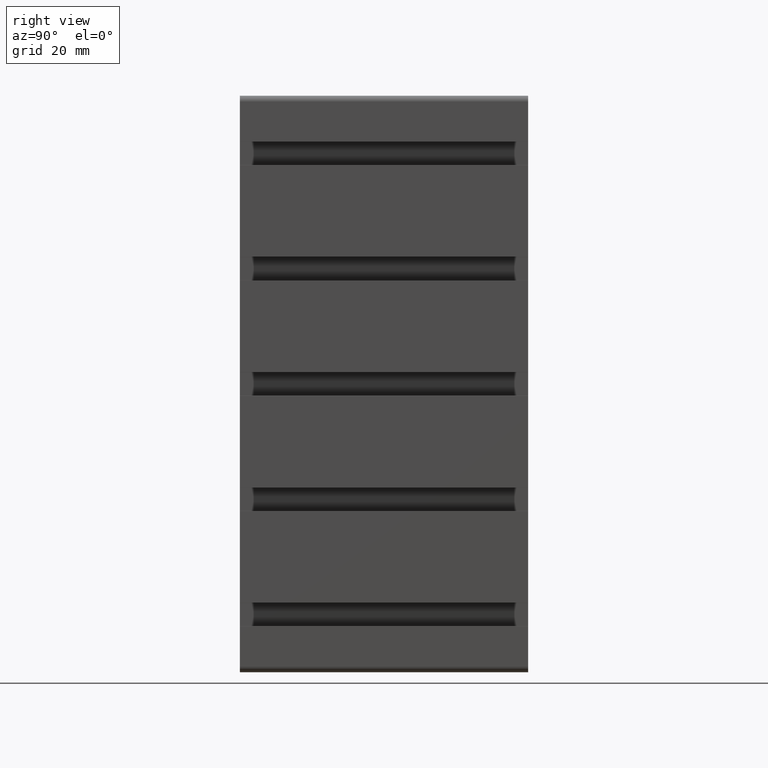
[diagram: clean part render]
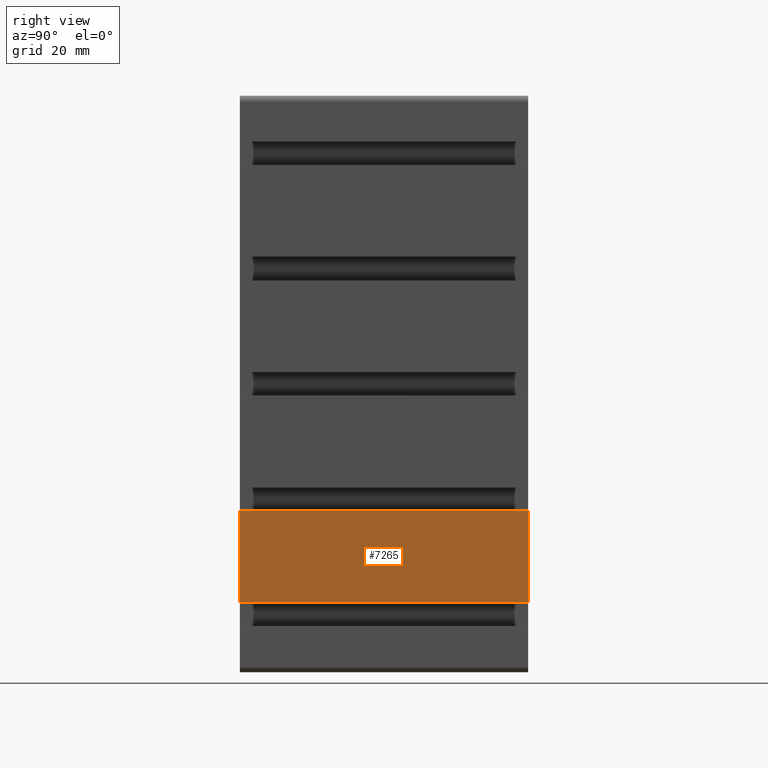
[diagram: same view with one face highlighted and labeled with its STEP entity id]
A machine part, right view. The second image highlights one B-rep face of the part: STEP entity #7265.
In plain terms, the highlighted planar face has unit normal (1, 0, -0).
Its self-contained STEP definition (entity closure, byte-faithful):
#89=LINE('',#10804,#857);
#90=LINE('',#10807,#858);
#91=LINE('',#10809,#859);
#92=LINE('',#10810,#860);
#857=VECTOR('',#8575,100.);
#858=VECTOR('',#8578,31.8000000000001);
#859=VECTOR('',#8579,31.8000000000001);
#860=VECTOR('',#8580,100.);
#1570=PLANE('',#7687);
#1831=FACE_OUTER_BOUND('',#2213,.T.);
#2213=EDGE_LOOP('',(#4961,#4962,#4963,#4964));
#3017=VERTEX_POINT('',#10800);
#3018=VERTEX_POINT('',#10802);
#3019=VERTEX_POINT('',#10806);
#3020=VERTEX_POINT('',#10808);
#3805=EDGE_CURVE('',#3017,#3018,#89,.T.);
#3806=EDGE_CURVE('',#3019,#3017,#90,.T.);
#3807=EDGE_CURVE('',#3020,#3018,#91,.T.);
#3808=EDGE_CURVE('',#3019,#3020,#92,.T.);
#4961=ORIENTED_EDGE('',*,*,#3806,.T.);
#4962=ORIENTED_EDGE('',*,*,#3805,.T.);
#4963=ORIENTED_EDGE('',*,*,#3807,.F.);
#4964=ORIENTED_EDGE('',*,*,#3808,.F.);
#7265=ADVANCED_FACE('',(#1831),#1570,.T.);
#7687=AXIS2_PLACEMENT_3D('',#10805,#8576,#8577);
#8575=DIRECTION('',(0.,1.,0.));
#8576=DIRECTION('center_axis',(1.,0.,-8.156915109182E-16));
#8577=DIRECTION('ref_axis',(-7.105427357601E-16,0.,-1.));
#8578=DIRECTION('',(-8.156915109182E-16,0.,-1.));
#8579=DIRECTION('',(-8.156915109182E-16,0.,-1.));
#8580=DIRECTION('',(0.,1.,0.));
#10800=CARTESIAN_POINT('',(59.9999999999999,0.,-75.9000000000003));
#10802=CARTESIAN_POINT('',(59.9999999999999,100.,-75.9000000000003));
#10804=CARTESIAN_POINT('',(59.9999999999999,0.,-75.9000000000003));
#10805=CARTESIAN_POINT('Origin',(59.9999999999999,0.,-44.1000000000003));
#10806=CARTESIAN_POINT('',(59.9999999999999,0.,-44.1000000000003));
#10807=CARTESIAN_POINT('',(59.9999999999999,0.,-44.1000000000003));
#10808=CARTESIAN_POINT('',(59.9999999999999,100.,-44.1000000000003));
#10809=CARTESIAN_POINT('',(59.9999999999999,100.,-44.1000000000003));
#10810=CARTESIAN_POINT('',(59.9999999999999,0.,-44.1000000000003));